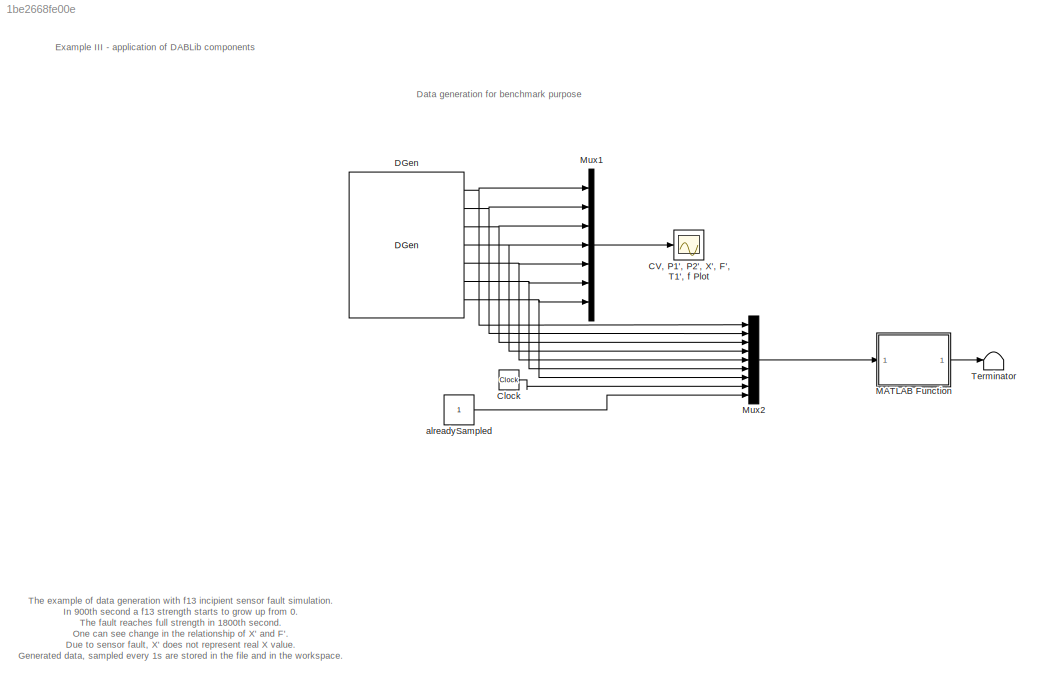
MODEL slx_1be2668fe00e
KIND model
CONFIG AbsTol = 1e-6
CONFIG EnableMultiTasking = off
CONFIG FixedStep = 0.0025
CONFIG MaxStep = auto
CONFIG MinStep = auto
CONFIG RelTol = 1e-3
CONFIG SampleTimeConstraint = Unconstrained
CONFIG Solver = ode5
CONFIG SolverName = ode5
CONFIG StartTime = 0.0
CONFIG StopTime = 85500
BLOCK [Scope] CV, P1', P2', X', F', T1', f Plot
  NumInputPorts = 1
  Ports = [1]
  ScopeSpecificationString = Simulink.scopes.TimeScopeBlockCfg('CurrentConfiguration', extmgr.ConfigurationSet(extmgr.Configuration('Core','General UI',true),extmgr.Configuration('Core','Source UI',true),extmgr.Configuration('Sources','WiredSimulink',true,'DataLoggingLimitDataPoints',true,'DataLoggingMaxPoints','3600','DataLoggingDecimation','1','DataLoggingDecimateData',true,'SampleTime','1','DataLoggingSaveFormat','Array'),...<+1801ch>
BLOCK [Clock] Clock
  DisplayTime = on
BLOCK [Reference] DGen  REF=DABLib/DGen
  Ports = [0, 7]
  SourceBlock = DABLib/DGen
  SourceType = Benchmark data generator
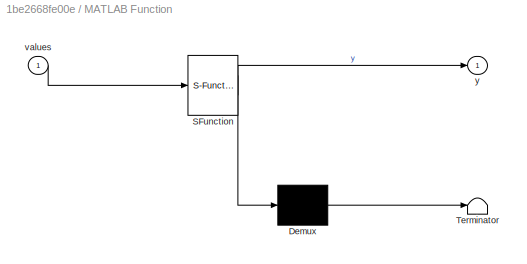
BLOCK [SubSystem] MATLAB Function
  ErrorFcn = Stateflow.Translate.translate
  PermitHierarchicalResolution = ExplicitOnly
  Ports = [1, 1]
  RequestExecContextInheritance = off
  SFBlockType = MATLAB Function
  TreatAsAtomicUnit = on
  Variant = off
BLOCK [Demux] MATLAB Function/ Demux 
  Outputs = 1
  Ports = [1, 1]
BLOCK [S-Function] MATLAB Function/ SFunction 
  EnableBusSupport = on
  FunctionName = sf_sfun
  PortCounts = [1 2]
  Ports = [1, 2]
  SFcnIsStateOwnerBlock = off
  SFunctionDeploymentMode = off
  Tag = Stateflow S-Function DataGeneration_ToDB 2
BLOCK [Terminator] MATLAB Function/ Terminator 
BLOCK [Inport] MATLAB Function/values
  IconDisplay = Port number
BLOCK [Outport] MATLAB Function/y
  IconDisplay = Port number
BLOCK [Mux] Mux1
  Inputs = 7
  Ports = [7, 1]
BLOCK [Mux] Mux2
  Inputs = 9
  Ports = [9, 1]
BLOCK [Terminator] Terminator
BLOCK [Constant] alreadySampled
  VectorParams1D = off
ANNOTATION (root): Data generation for benchmark purpose
ANNOTATION (root): Example III - application of DABLib components
ANNOTATION (root): The example of data generation with f13 incipient sensor fault simulation. In 900th second a f13 strength starts to grow up from 0. The fault reaches full strength in 1800th second. One can see change in the relationship of X' and F'. Due to sensor fault, X' does not represent real X value. Generated data, sampled every 1s are stored in the file and in the workspace. Instead of Scope block the on-...<+39ch>
LINE Clock:1 -> Mux2:8
NET DGen:1 -> Mux1:1, Mux2:1
NET DGen:2 -> Mux1:2, Mux2:2
NET DGen:3 -> Mux1:3, Mux2:3
NET DGen:4 -> Mux1:4, Mux2:4
NET DGen:5 -> Mux1:5, Mux2:5
NET DGen:6 -> Mux1:6, Mux2:6
NET DGen:7 -> Mux1:7, Mux2:7
LINE MATLAB Function:1 -> Terminator:1
LINE Mux1:1 -> CV, P1', P2', X', F', T1', f Plot:1
LINE Mux2:1 -> MATLAB Function:1
LINE alreadySampled:1 -> Mux2:9
note: NET lines group one-source signal fan-out (src -> all destinations, sorted); 1:1 wires keep LINE
CHART MATLAB Function states=1 transitions=1
  STATE_LABEL 'eML_blk_kernel()'
  STATE_LABEL "SCRIPT:\nfunction y = saveToDB(values)\n\ncoder.extrinsic('set_param');\ncoder.extrinsic('evalin');\ncoder.extrinsic('disp');\n\nalreadySampled = values(9);\ntime = values(8);\n\nintTime=floor(time);\nfracTime=time-intTime;\n\n%Write samples to the database\nif fracTime == 0 && mod(intTime,5) == 0 && alreadySampled == 0\n    set_param('DataGeneration_toDB/alreadySampled', 'Value', '1');\n    alreadySampled = 1;\n ...<+2448ch>"
